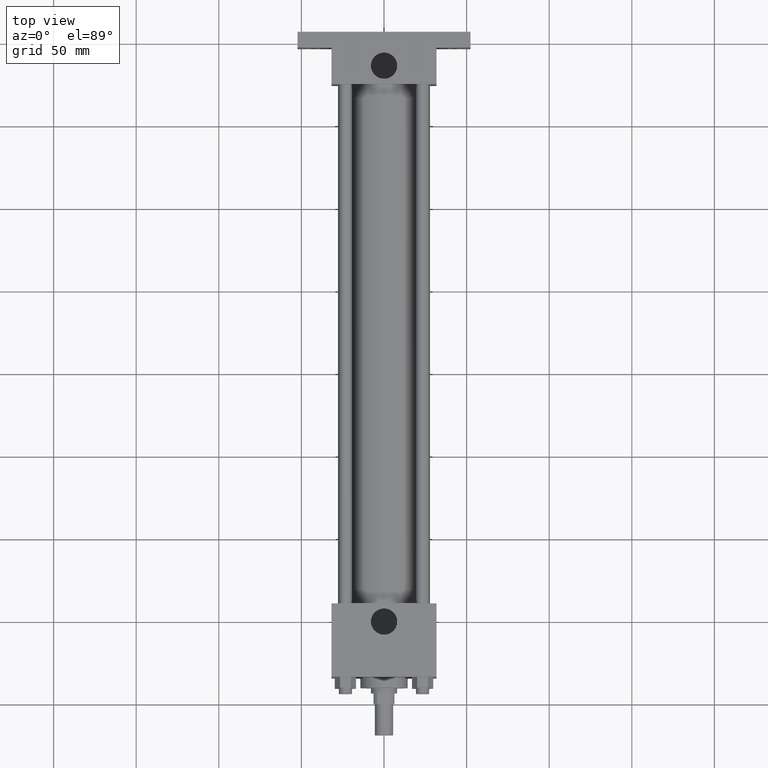
[diagram: clean part render]
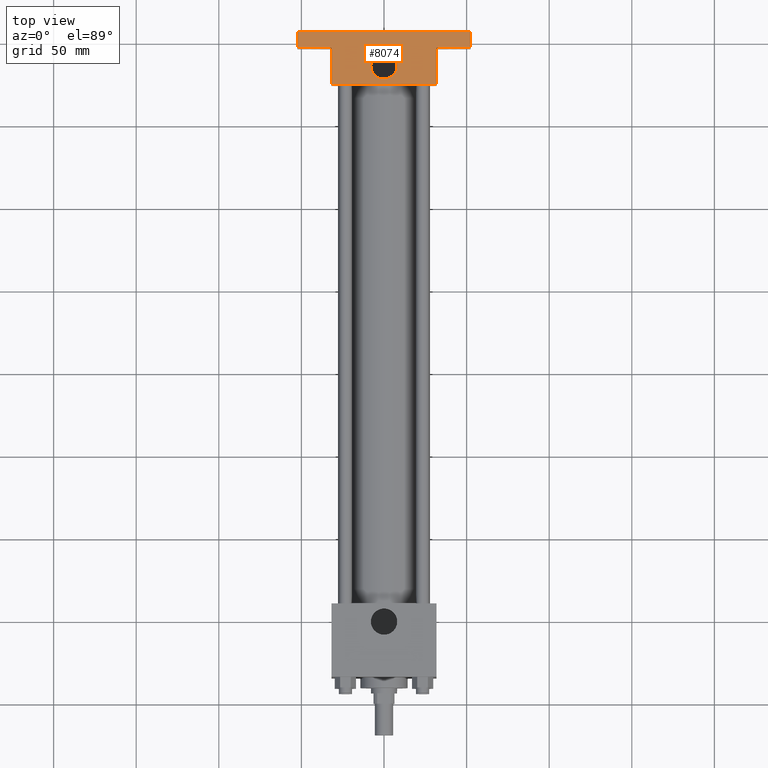
[diagram: same view with one face highlighted and labeled with its STEP entity id]
A machine part, top view. The second image highlights one B-rep face of the part: STEP entity #8074.
In plain terms, the highlighted planar face has unit normal (0, 0, 1).
Its self-contained STEP definition (entity closure, byte-faithful):
#3439=VERTEX_POINT('',#3440);
#3440=CARTESIAN_POINT('',(3.175000000E+001,3.746500000E+002,3.175000000E+001));
#3441=EDGE_CURVE('',#3439,#3446,#3442,.T.);
#3442=LINE('',#3443,#3444);
#3443=CARTESIAN_POINT('',(3.175000000E+001,3.746500000E+002,3.175000000E+001));
#3444=VECTOR('',#3445,1.0E+000);
#3445=DIRECTION('',(-1.0E+000,0.0E+000,0.0E+000));
#3446=VERTEX_POINT('',#3447);
#3447=CARTESIAN_POINT('',(-3.175000000E+001,3.746500000E+002,3.175000000E+001));
#3555=FACE_OUTER_BOUND('',#3557,.T.);
#3556=FACE_BOUND('',#3558,.T.);
#3557=EDGE_LOOP('',(#3559,#3560,#3561,#3562,#3563,#3564,#3565,#3566));
#3558=EDGE_LOOP('',(#3610));
#3559=ORIENTED_EDGE('',*,*,#3441,.F.);
#3560=ORIENTED_EDGE('',*,*,#3567,.F.);
#3561=ORIENTED_EDGE('',*,*,#3574,.F.);
#3562=ORIENTED_EDGE('',*,*,#3581,.F.);
#3563=ORIENTED_EDGE('',*,*,#3588,.T.);
#3564=ORIENTED_EDGE('',*,*,#3595,.T.);
#3565=ORIENTED_EDGE('',*,*,#3602,.F.);
#3566=ORIENTED_EDGE('',*,*,#3605,.T.);
#3567=EDGE_CURVE('',#3572,#3439,#3568,.T.);
#3568=LINE('',#3569,#3570);
#3569=CARTESIAN_POINT('',(3.175000000E+001,3.968750000E+002,3.175000000E+001));
#3570=VECTOR('',#3571,1.0E+000);
#3571=DIRECTION('',(0.0E+000,-1.0E+000,0.0E+000));
#3572=VERTEX_POINT('',#3573);
#3573=CARTESIAN_POINT('',(3.175000000E+001,3.968750000E+002,3.175000000E+001));
#3574=EDGE_CURVE('',#3579,#3572,#3575,.T.);
#3575=LINE('',#3576,#3577);
#3576=CARTESIAN_POINT('',(5.238750000E+001,3.968750000E+002,3.175000000E+001));
#3577=VECTOR('',#3578,1.0E+000);
#3578=DIRECTION('',(-1.0E+000,0.0E+000,0.0E+000));
#3579=VERTEX_POINT('',#3580);
#3580=CARTESIAN_POINT('',(5.238750000E+001,3.968750000E+002,3.175000000E+001));
#3581=EDGE_CURVE('',#3586,#3579,#3582,.T.);
#3582=LINE('',#3583,#3584);
#3583=CARTESIAN_POINT('',(5.238750000E+001,4.064000000E+002,3.175000000E+001));
#3584=VECTOR('',#3585,1.0E+000);
#3585=DIRECTION('',(0.0E+000,-1.0E+000,0.0E+000));
#3586=VERTEX_POINT('',#3587);
#3587=CARTESIAN_POINT('',(5.238750000E+001,4.064000000E+002,3.175000000E+001));
#3588=EDGE_CURVE('',#3586,#3593,#3589,.T.);
#3589=LINE('',#3590,#3591);
#3590=CARTESIAN_POINT('',(5.238750000E+001,4.064000000E+002,3.175000000E+001));
#3591=VECTOR('',#3592,1.0E+000);
#3592=DIRECTION('',(-1.0E+000,0.0E+000,0.0E+000));
#3593=VERTEX_POINT('',#3594);
#3594=CARTESIAN_POINT('',(-5.238750000E+001,4.064000000E+002,3.175000000E+001));
#3595=EDGE_CURVE('',#3593,#3600,#3596,.T.);
#3596=LINE('',#3597,#3598);
#3597=CARTESIAN_POINT('',(-5.238750000E+001,4.064000000E+002,3.175000000E+001));
#3598=VECTOR('',#3599,1.0E+000);
#3599=DIRECTION('',(0.0E+000,-1.0E+000,0.0E+000));
#3600=VERTEX_POINT('',#3601);
#3601=CARTESIAN_POINT('',(-5.238750000E+001,3.968750000E+002,3.175000000E+001));
#3602=EDGE_CURVE('',#3603,#3600,#3575,.T.);
#3603=VERTEX_POINT('',#3604);
#3604=CARTESIAN_POINT('',(-3.175000000E+001,3.968750000E+002,3.175000000E+001));
#3605=EDGE_CURVE('',#3603,#3446,#3606,.T.);
#3606=LINE('',#3607,#3608);
#3607=CARTESIAN_POINT('',(-3.175000000E+001,3.968750000E+002,3.175000000E+001));
#3608=VECTOR('',#3609,1.0E+000);
#3609=DIRECTION('',(0.0E+000,-1.0E+000,0.0E+000));
#3610=ORIENTED_EDGE('',*,*,#3611,.T.);
#3611=EDGE_CURVE('',#3617,#3617,#3612,.T.);
#3612=CIRCLE('',#3613,7.963027000E+000);
#3613=AXIS2_PLACEMENT_3D('',#3614,#3615,#3616);
#3614=CARTESIAN_POINT('',(0.000000000E+000,3.857625000E+002,3.175000000E+001));
#3615=DIRECTION('',(0.0E+000,0.0E+000,-1.0E+000));
#3616=DIRECTION('',(1.0E+000,0.0E+000,0.0E+000));
#3617=VERTEX_POINT('',#3618);
#3618=CARTESIAN_POINT('',(7.963027000E+000,3.857625000E+002,3.175000000E+001));
#3619=PLANE('',#3620);
#3620=AXIS2_PLACEMENT_3D('',#3621,#3622,#3623);
#3621=CARTESIAN_POINT('',(3.175000000E+001,3.968750000E+002,3.175000000E+001));
#3622=DIRECTION('',(0.0E+000,0.0E+000,1.0E+000));
#3623=DIRECTION('',(1.0E+000,0.0E+000,0.0E+000));
#8074=ADVANCED_FACE('',(#3555,#3556),#3619,.T.);